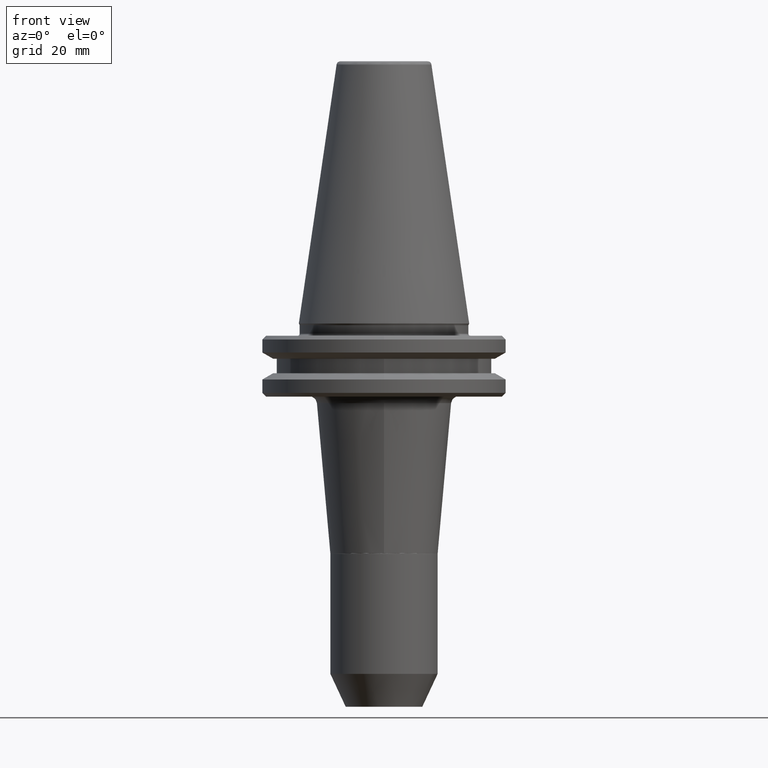
[diagram: clean part render]
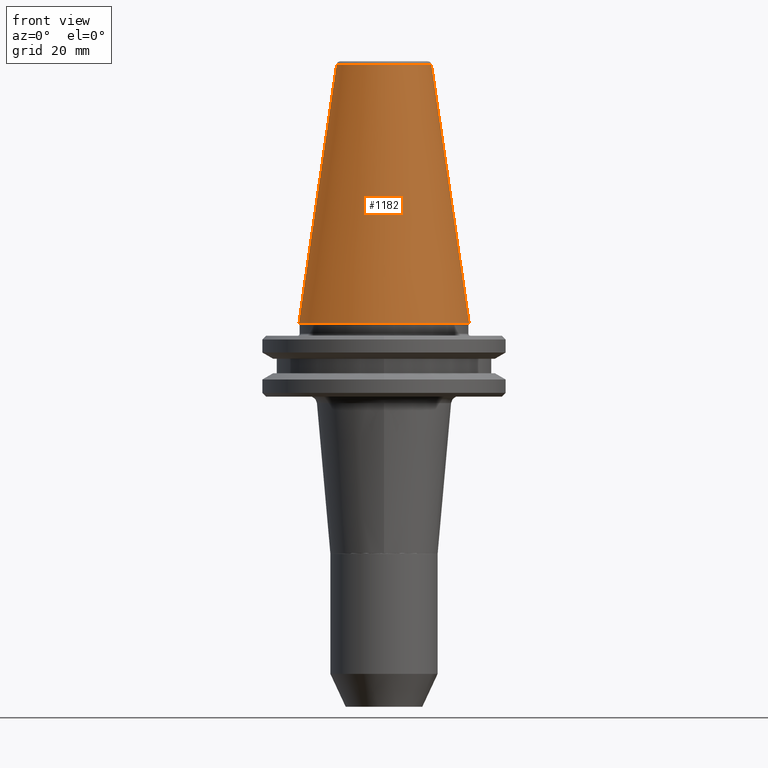
[diagram: same view with one face highlighted and labeled with its STEP entity id]
A machine part, front view. The second image highlights one B-rep face of the part: STEP entity #1182.
In plain terms, the highlighted conical surface has half-angle 8.297 deg.
Its self-contained STEP definition (entity closure, byte-faithful):
#47 = AXIS2_PLACEMENT_3D ( 'NONE', #604, #606, #613 ) ;
#222 = CARTESIAN_POINT ( 'NONE',  ( 22.22499999999999400, 2.721777511104992100E-015, 0.0000000000000000000 ) ) ;
#266 = EDGE_LOOP ( 'NONE', ( #643, #605, #662, #828 ) ) ;
#274 = AXIS2_PLACEMENT_3D ( 'NONE', #862, #861, #860 ) ;
#482 = CARTESIAN_POINT ( 'NONE',  ( -22.22499999999999400, 0.0000000000000000000, 0.0000000000000000000 ) ) ;
#508 = DIRECTION ( 'NONE',  ( -0.1443082272694599400, 0.0000000000000000000, -0.9895327864918603800 ) ) ;
#548 = CARTESIAN_POINT ( 'NONE',  ( 22.22499999999999400, 2.721777511104992100E-015, 0.0000000000000000000 ) ) ;
#549 = DIRECTION ( 'NONE',  ( 0.1443082272694599400, 1.767266086161729200E-017, -0.9895327864918603800 ) ) ;
#556 = EDGE_CURVE ( 'NONE', #1239, #567, #1486, .T. ) ;
#567 = VERTEX_POINT ( 'NONE', #1098 ) ;
#569 = CARTESIAN_POINT ( 'NONE',  ( 12.37469537590452100, -2.855354478374084000E-009, 67.54430822699950500 ) ) ;
#604 = CARTESIAN_POINT ( 'NONE',  ( 0.0000000000000000000, 0.0000000000000000000, 0.0000000000000000000 ) ) ;
#605 = ORIENTED_EDGE ( 'NONE', *, *, #556, .T. ) ;
#606 = DIRECTION ( 'NONE',  ( 0.0000000000000000000, 0.0000000000000000000, -1.000000000000000000 ) ) ;
#613 = DIRECTION ( 'NONE',  ( -1.000000000000000000, 0.0000000000000000000, 0.0000000000000000000 ) ) ;
#643 = ORIENTED_EDGE ( 'NONE', *, *, #1280, .F. ) ;
#662 = ORIENTED_EDGE ( 'NONE', *, *, #1357, .T. ) ;
#734 = VERTEX_POINT ( 'NONE', #1177 ) ;
#741 = AXIS2_PLACEMENT_3D ( 'NONE', #1153, #1127, #1121 ) ;
#770 = VECTOR ( 'NONE', #508, 1000.000000000000100 ) ;
#787 = LINE ( 'NONE', #482, #770 ) ;
#828 = ORIENTED_EDGE ( 'NONE', *, *, #998, .T. ) ;
#855 = CIRCLE ( 'NONE', #274, 22.22499999999999400 ) ;
#860 = DIRECTION ( 'NONE',  ( -1.000000000000000000, 0.0000000000000000000, 0.0000000000000000000 ) ) ;
#861 = DIRECTION ( 'NONE',  ( -0.0000000000000000000, -0.0000000000000000000, 1.000000000000000000 ) ) ;
#862 = CARTESIAN_POINT ( 'NONE',  ( 0.0000000000000000000, 0.0000000000000000000, 0.0000000000000000000 ) ) ;
#958 = VECTOR ( 'NONE', #549, 1000.000000000000100 ) ;
#998 = EDGE_CURVE ( 'NONE', #734, #1382, #855, .T. ) ;
#1044 = LINE ( 'NONE', #548, #958 ) ;
#1098 = CARTESIAN_POINT ( 'NONE',  ( -12.37469537590595300, -5.555843992514513000E-010, 67.54430822698967100 ) ) ;
#1121 = DIRECTION ( 'NONE',  ( -1.000000000000000000, 0.0000000000000000000, 0.0000000000000000000 ) ) ;
#1127 = DIRECTION ( 'NONE',  ( 0.0000000000000000000, 0.0000000000000000000, -1.000000000000000000 ) ) ;
#1153 = CARTESIAN_POINT ( 'NONE',  ( 0.0000000000000000000, 0.0000000000000000000, 67.54430822701309000 ) ) ;
#1177 = CARTESIAN_POINT ( 'NONE',  ( -22.22499999999999400, 0.0000000000000000000, 0.0000000000000000000 ) ) ;
#1182 = ADVANCED_FACE ( 'NONE', ( #1341 ), #1237, .T. ) ;
#1237 = CONICAL_SURFACE ( 'NONE', #47, 22.22499999999999400, 0.1448138465495947800 ) ;
#1239 = VERTEX_POINT ( 'NONE', #569 ) ;
#1280 = EDGE_CURVE ( 'NONE', #1239, #1382, #1044, .T. ) ;
#1341 = FACE_OUTER_BOUND ( 'NONE', #266, .T. ) ;
#1357 = EDGE_CURVE ( 'NONE', #567, #734, #787, .T. ) ;
#1382 = VERTEX_POINT ( 'NONE', #222 ) ;
#1486 = CIRCLE ( 'NONE', #741, 12.37469537599809200 ) ;